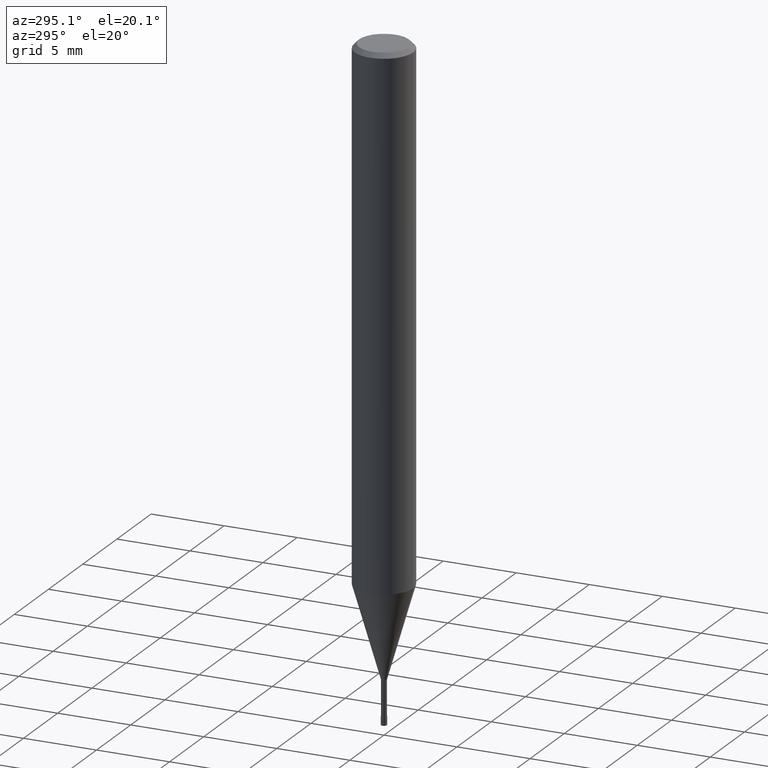
[diagram: clean part render]
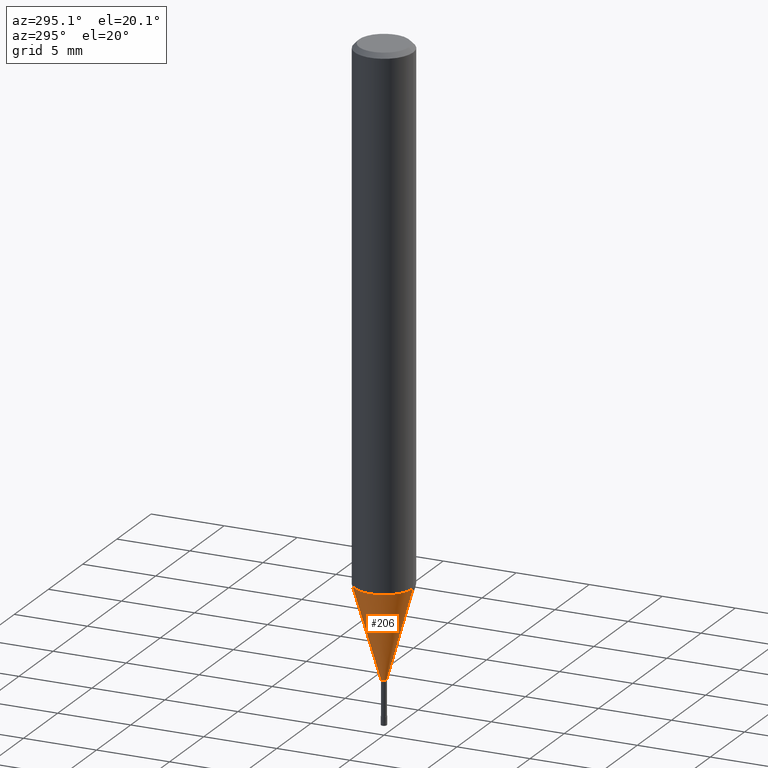
[diagram: same view with one face highlighted and labeled with its STEP entity id]
A machine part, auxiliary view. The second image highlights one B-rep face of the part: STEP entity #206.
In plain terms, the highlighted conical surface has half-angle 16.001 deg.
Its self-contained STEP definition (entity closure, byte-faithful):
#102=EDGE_CURVE('',#108,#148,#241,.T.);
#108=VERTEX_POINT('',#247);
#120=VERTEX_POINT('',#259);
#126=EDGE_CURVE('',#120,#108,#265,.T.);
#134=VERTEX_POINT('',#274);
#148=VERTEX_POINT('',#292);
#162=EDGE_CURVE('',#148,#134,#309,.T.);
#192=EDGE_CURVE('',#120,#134,#343,.T.);
#206=ADVANCED_FACE('',(#357),#358,.T.);
#241=CIRCLE('',#392,1.99995);
#247=CARTESIAN_POINT('',(2.44915147732706E-016,-1.99995,-35.688));
#259=CARTESIAN_POINT('',(2.3261397690856E-017,-0.18995,-42.0));
#265=LINE('',#425,#426);
#274=CARTESIAN_POINT('',(0.0,0.18995,-42.0));
#292=CARTESIAN_POINT('',(0.0,1.99995,-35.688));
#309=LINE('',#475,#476);
#343=CIRCLE('',#517,0.18995);
#357=FACE_OUTER_BOUND('',#536,.T.);
#358=CONICAL_SURFACE('',#537,1.09495,0.279261921280279);
#392=AXIS2_PLACEMENT_3D('',#563,#564,#565);
#425=CARTESIAN_POINT('',(1.34088272711781E-016,-1.09495,-38.844));
#426=VECTOR('',#580,1.0);
#475=CARTESIAN_POINT('',(-1.34088272711781E-016,1.09495,-38.844));
#476=VECTOR('',#644,1.0);
#517=AXIS2_PLACEMENT_3D('',#685,#686,#687);
#536=EDGE_LOOP('',(#699,#700,#701,#702));
#537=AXIS2_PLACEMENT_3D('',#703,#704,#705);
#563=CARTESIAN_POINT('',(0.0,0.0,-35.688));
#564=DIRECTION('',(0.0,0.0,-1.0));
#565=DIRECTION('',(0.0,1.0,0.0));
#580=DIRECTION('',(3.37558135426109E-017,-0.275646238787252,0.961259148743169));
#644=DIRECTION('',(3.37558135426109E-017,-0.275646238787252,-0.961259148743169));
#685=CARTESIAN_POINT('',(0.0,0.0,-42.0));
#686=DIRECTION('',(0.0,0.0,-1.0));
#687=DIRECTION('',(0.0,1.0,0.0));
#699=ORIENTED_EDGE('',*,*,#162,.T.);
#700=ORIENTED_EDGE('',*,*,#192,.F.);
#701=ORIENTED_EDGE('',*,*,#126,.T.);
#702=ORIENTED_EDGE('',*,*,#102,.T.);
#703=CARTESIAN_POINT('',(0.0,0.0,-38.844));
#704=DIRECTION('',(-0.0,-0.0,1.0));
#705=DIRECTION('',(0.0,1.0,0.0));